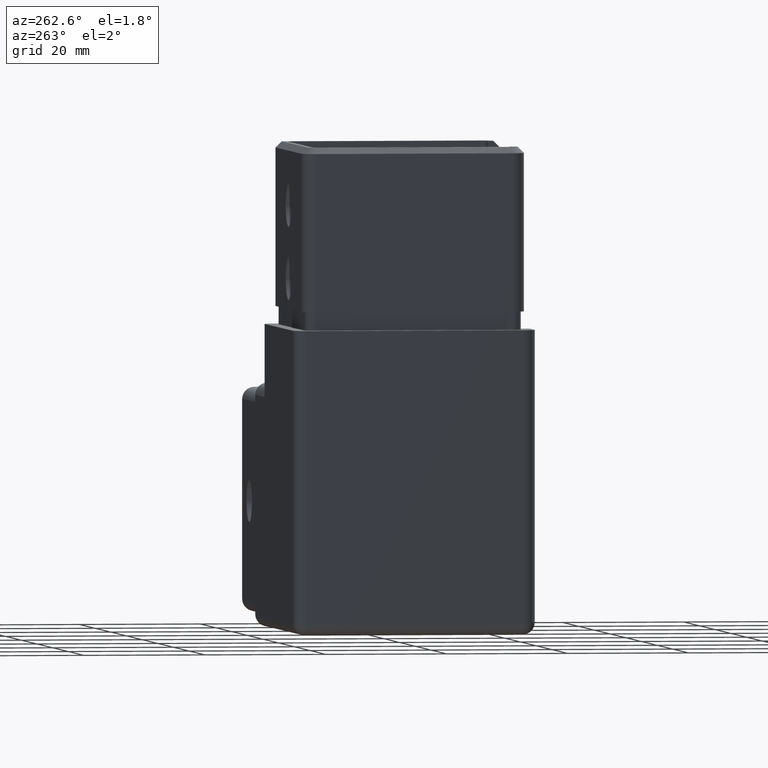
[diagram: clean part render]
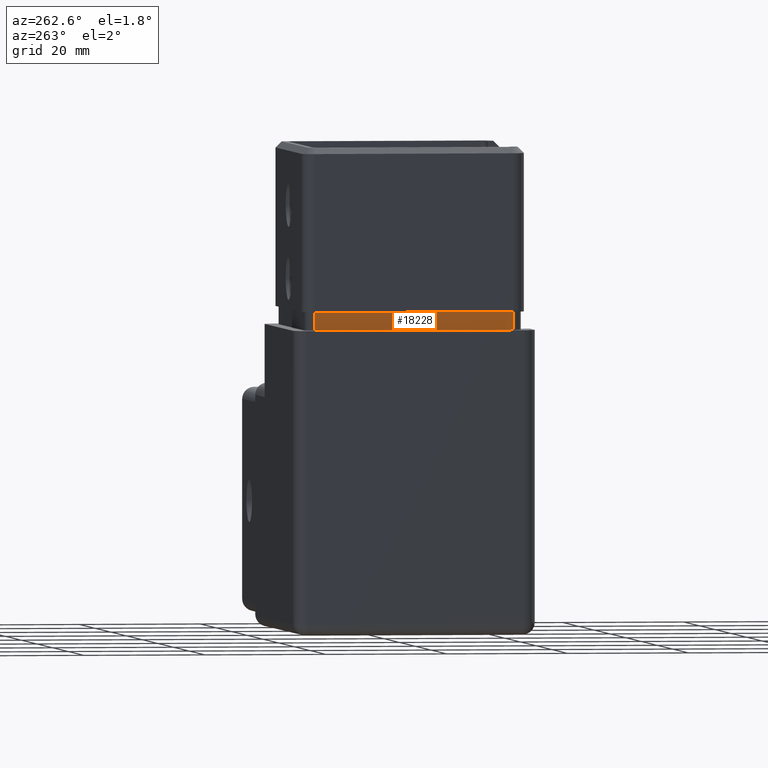
[diagram: same view with one face highlighted and labeled with its STEP entity id]
A machine part, auxiliary view. The second image highlights one B-rep face of the part: STEP entity #18228.
In plain terms, the highlighted planar face has unit normal (-1, 0, 0).
Its self-contained STEP definition (entity closure, byte-faithful):
#283 = PLANE ( 'NONE',  #13620 ) ;
#875 = ORIENTED_EDGE ( 'NONE', *, *, #15088, .F. ) ;
#1473 = DIRECTION ( 'NONE',  ( 0.000000000000000000, 0.000000000000000000, 1.000000000000000000 ) ) ;
#1779 = LINE ( 'NONE', #10976, #14266 ) ;
#1966 = DIRECTION ( 'NONE',  ( -0.000000000000000000, 1.000000000000000000, -0.000000000000000000 ) ) ;
#2072 = VERTEX_POINT ( 'NONE', #18609 ) ;
#2867 = DIRECTION ( 'NONE',  ( -0.000000000000000000, 1.000000000000000000, -0.000000000000000000 ) ) ;
#3276 = EDGE_LOOP ( 'NONE', ( #13808, #10440, #875, #17859 ) ) ;
#3397 = CARTESIAN_POINT ( 'NONE',  ( -17.89999999999999858, -3.600000000000020073, 30.00000000000000000 ) ) ;
#3482 = CARTESIAN_POINT ( 'NONE',  ( -17.89999999999999858, -36.40000000000000568, 33.00000000000000000 ) ) ;
#3651 = EDGE_CURVE ( 'NONE', #12896, #2072, #5004, .T. ) ;
#4343 = CARTESIAN_POINT ( 'NONE',  ( -17.90000000000000213, -36.40000000000000568, 30.00000000000000000 ) ) ;
#4587 = CARTESIAN_POINT ( 'NONE',  ( -17.89999999999999858, -36.40000000000001279, 33.00000000000000000 ) ) ;
#5004 = LINE ( 'NONE', #16780, #17476 ) ;
#5076 = FACE_OUTER_BOUND ( 'NONE', #3276, .T. ) ;
#5520 = LINE ( 'NONE', #10374, #19388 ) ;
#7682 = DIRECTION ( 'NONE',  ( -1.000000000000000000, 0.000000000000000000, 0.000000000000000000 ) ) ;
#7867 = DIRECTION ( 'NONE',  ( 0.000000000000000000, 0.000000000000000000, 1.000000000000000000 ) ) ;
#7966 = VERTEX_POINT ( 'NONE', #4343 ) ;
#8353 = VECTOR ( 'NONE', #10887, 1000.000000000000000 ) ;
#10374 = CARTESIAN_POINT ( 'NONE',  ( -17.89999999999999858, -36.40000000000001279, 30.00000000000000000 ) ) ;
#10440 = ORIENTED_EDGE ( 'NONE', *, *, #3651, .F. ) ;
#10454 = LINE ( 'NONE', #3482, #8353 ) ;
#10887 = DIRECTION ( 'NONE',  ( 0.000000000000000000, 0.000000000000000000, 1.000000000000000000 ) ) ;
#10976 = CARTESIAN_POINT ( 'NONE',  ( -17.89999999999999858, -36.40000000000001279, 33.00000000000000000 ) ) ;
#12896 = VERTEX_POINT ( 'NONE', #3397 ) ;
#13440 = EDGE_CURVE ( 'NONE', #19107, #2072, #1779, .T. ) ;
#13620 = AXIS2_PLACEMENT_3D ( 'NONE', #4587, #7682, #1473 ) ;
#13808 = ORIENTED_EDGE ( 'NONE', *, *, #13440, .T. ) ;
#14266 = VECTOR ( 'NONE', #1966, 1000.000000000000000 ) ;
#14280 = CARTESIAN_POINT ( 'NONE',  ( -17.90000000000000213, -36.40000000000000568, 33.00000000000000000 ) ) ;
#15088 = EDGE_CURVE ( 'NONE', #7966, #12896, #5520, .T. ) ;
#15200 = EDGE_CURVE ( 'NONE', #7966, #19107, #10454, .T. ) ;
#16780 = CARTESIAN_POINT ( 'NONE',  ( -17.89999999999999858, -3.600000000000016520, 33.00000000000000000 ) ) ;
#17476 = VECTOR ( 'NONE', #7867, 1000.000000000000000 ) ;
#17859 = ORIENTED_EDGE ( 'NONE', *, *, #15200, .T. ) ;
#18228 = ADVANCED_FACE ( 'NONE', ( #5076 ), #283, .T. ) ;
#18609 = CARTESIAN_POINT ( 'NONE',  ( -17.89999999999999858, -3.600000000000020073, 33.00000000000000000 ) ) ;
#19107 = VERTEX_POINT ( 'NONE', #14280 ) ;
#19388 = VECTOR ( 'NONE', #2867, 1000.000000000000000 ) ;